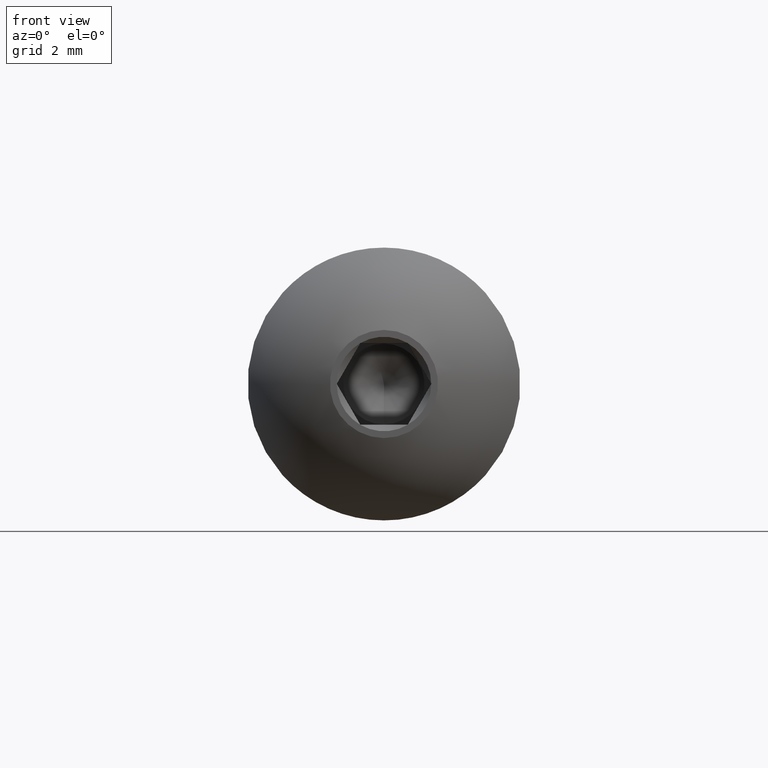
[diagram: clean part render]
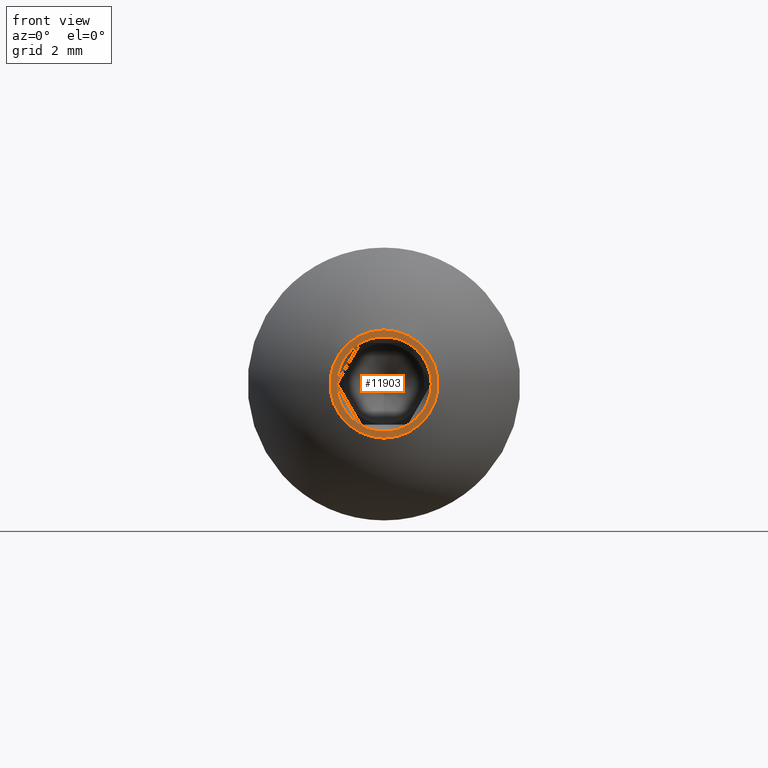
[diagram: same view with one face highlighted and labeled with its STEP entity id]
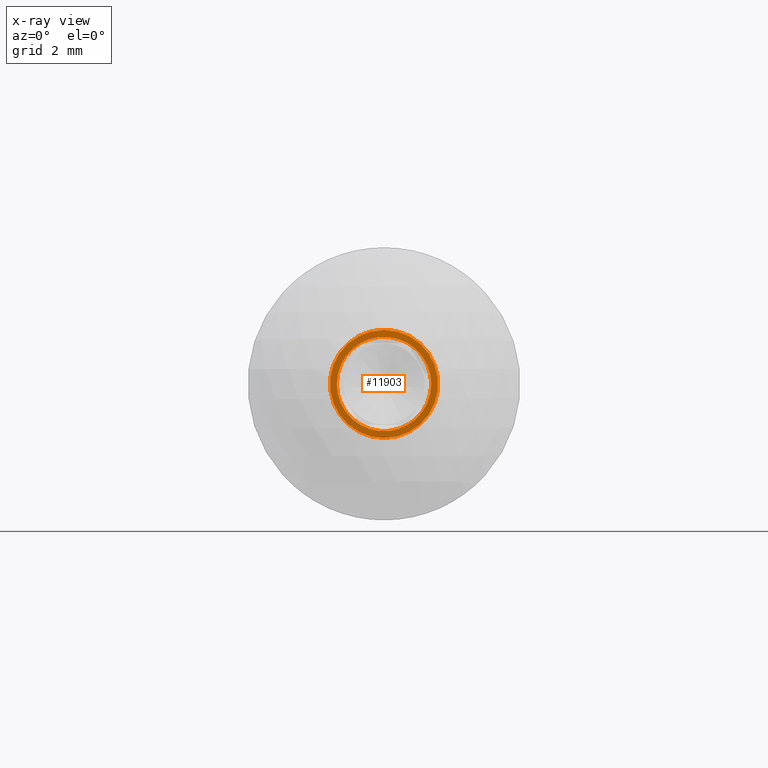
[diagram: x-ray of the same camera — body ghosted, the highlighted face saturated]
A machine part, front view. The second image highlights one B-rep face of the part: STEP entity #11903.
The next image is the same camera in x-ray: the body ghosted, the highlighted face saturated — about 0% of this face is hidden behind the body in this view.
In plain terms, the highlighted planar face has unit normal (0, 1, 0).
Its self-contained STEP definition (entity closure, byte-faithful):
#439 = CIRCLE ( 'NONE', #8825, 1.732050807568877200 ) ;
#653 = ORIENTED_EDGE ( 'NONE', *, *, #11321, .T. ) ;
#969 = VERTEX_POINT ( 'NONE', #1791 ) ;
#1025 = ORIENTED_EDGE ( 'NONE', *, *, #6779, .F. ) ;
#1045 = PLANE ( 'NONE',  #10251 ) ;
#1106 = DIRECTION ( 'NONE',  ( -0.0000000000000000000, -1.000000000000000000, -0.0000000000000000000 ) ) ;
#1461 = CARTESIAN_POINT ( 'NONE',  ( 0.8660254037844238300, 0.0000000000000000000, 1.500000000000000000 ) ) ;
#1791 = CARTESIAN_POINT ( 'NONE',  ( -0.8660254037844510300, 0.0000000000000000000, -1.500000000000000900 ) ) ;
#1912 = AXIS2_PLACEMENT_3D ( 'NONE', #5806, #4670, #2574 ) ;
#1916 = EDGE_CURVE ( 'NONE', #5576, #10264, #13132, .T. ) ;
#2182 = DIRECTION ( 'NONE',  ( 0.0000000000000000000, 0.0000000000000000000, -1.000000000000000000 ) ) ;
#2574 = DIRECTION ( 'NONE',  ( 0.0000000000000000000, 0.0000000000000000000, -1.000000000000000000 ) ) ;
#2749 = VERTEX_POINT ( 'NONE', #7374 ) ;
#2765 = CIRCLE ( 'NONE', #5632, 1.732050807568877200 ) ;
#3340 = AXIS2_PLACEMENT_3D ( 'NONE', #13611, #6700, #2182 ) ;
#4016 = EDGE_CURVE ( 'NONE', #2749, #5652, #6768, .T. ) ;
#4464 = DIRECTION ( 'NONE',  ( 0.0000000000000000000, -0.0000000000000000000, 1.000000000000000000 ) ) ;
#4606 = DIRECTION ( 'NONE',  ( 0.0000000000000000000, 0.0000000000000000000, -1.000000000000000000 ) ) ;
#4670 = DIRECTION ( 'NONE',  ( -0.0000000000000000000, -1.000000000000000000, -0.0000000000000000000 ) ) ;
#4770 = CARTESIAN_POINT ( 'NONE',  ( 0.0000000000000000000, 0.0000000000000000000, 0.0000000000000000000 ) ) ;
#4791 = AXIS2_PLACEMENT_3D ( 'NONE', #5551, #13608, #4606 ) ;
#4921 = CIRCLE ( 'NONE', #7169, 1.982050807568877600 ) ;
#5551 = CARTESIAN_POINT ( 'NONE',  ( 0.0000000000000000000, 0.0000000000000000000, 0.0000000000000000000 ) ) ;
#5576 = VERTEX_POINT ( 'NONE', #11375 ) ;
#5632 = AXIS2_PLACEMENT_3D ( 'NONE', #4770, #9228, #6956 ) ;
#5652 = VERTEX_POINT ( 'NONE', #13956 ) ;
#5806 = CARTESIAN_POINT ( 'NONE',  ( 0.0000000000000000000, 0.0000000000000000000, 0.0000000000000000000 ) ) ;
#5832 = ORIENTED_EDGE ( 'NONE', *, *, #13388, .F. ) ;
#5928 = CARTESIAN_POINT ( 'NONE',  ( 0.0000000000000000000, 0.0000000000000000000, 0.0000000000000000000 ) ) ;
#6536 = VERTEX_POINT ( 'NONE', #1461 ) ;
#6700 = DIRECTION ( 'NONE',  ( -0.0000000000000000000, -1.000000000000000000, -0.0000000000000000000 ) ) ;
#6768 = CIRCLE ( 'NONE', #1912, 1.732050807568877200 ) ;
#6779 = EDGE_CURVE ( 'NONE', #6536, #2749, #12321, .T. ) ;
#6956 = DIRECTION ( 'NONE',  ( 0.0000000000000000000, 0.0000000000000000000, -1.000000000000000000 ) ) ;
#7169 = AXIS2_PLACEMENT_3D ( 'NONE', #7357, #13306, #8720 ) ;
#7357 = CARTESIAN_POINT ( 'NONE',  ( 0.0000000000000000000, 0.0000000000000000000, 0.0000000000000000000 ) ) ;
#7374 = CARTESIAN_POINT ( 'NONE',  ( -0.8660254037844510300, 0.0000000000000000000, 1.500000000000000000 ) ) ;
#7525 = VERTEX_POINT ( 'NONE', #11165 ) ;
#8131 = CIRCLE ( 'NONE', #4791, 1.732050807568877200 ) ;
#8720 = DIRECTION ( 'NONE',  ( 0.0000000000000000000, 0.0000000000000000000, -1.000000000000000000 ) ) ;
#8825 = AXIS2_PLACEMENT_3D ( 'NONE', #5928, #13233, #13184 ) ;
#8969 = CARTESIAN_POINT ( 'NONE',  ( 1.982050807568877200, 0.0000000000000000000, 0.0000000000000000000 ) ) ;
#9228 = DIRECTION ( 'NONE',  ( -0.0000000000000000000, -1.000000000000000000, -0.0000000000000000000 ) ) ;
#9819 = CARTESIAN_POINT ( 'NONE',  ( 1.732050807568857900, 0.0000000000000000000, -3.245523709726175600E-016 ) ) ;
#10251 = AXIS2_PLACEMENT_3D ( 'NONE', #8969, #12453, #4464 ) ;
#10264 = VERTEX_POINT ( 'NONE', #9819 ) ;
#10430 = EDGE_LOOP ( 'NONE', ( #653 ) ) ;
#11165 = CARTESIAN_POINT ( 'NONE',  ( 0.0000000000000000000, 0.0000000000000000000, -1.982050807568877600 ) ) ;
#11321 = EDGE_CURVE ( 'NONE', #7525, #7525, #4921, .T. ) ;
#11353 = ORIENTED_EDGE ( 'NONE', *, *, #11905, .F. ) ;
#11375 = CARTESIAN_POINT ( 'NONE',  ( 0.8660254037844173900, 0.0000000000000000000, -1.500000000000012200 ) ) ;
#11399 = DIRECTION ( 'NONE',  ( 0.0000000000000000000, 0.0000000000000000000, -1.000000000000000000 ) ) ;
#11563 = FACE_BOUND ( 'NONE', #13654, .T. ) ;
#11903 = ADVANCED_FACE ( 'NONE', ( #11563, #12295 ), #1045, .F. ) ;
#11905 = EDGE_CURVE ( 'NONE', #10264, #6536, #8131, .T. ) ;
#12295 = FACE_OUTER_BOUND ( 'NONE', #10430, .T. ) ;
#12321 = CIRCLE ( 'NONE', #3340, 1.732050807568877200 ) ;
#12453 = DIRECTION ( 'NONE',  ( 0.0000000000000000000, 1.000000000000000000, 0.0000000000000000000 ) ) ;
#12573 = EDGE_CURVE ( 'NONE', #969, #5576, #2765, .T. ) ;
#12645 = ORIENTED_EDGE ( 'NONE', *, *, #1916, .F. ) ;
#12895 = ORIENTED_EDGE ( 'NONE', *, *, #12573, .F. ) ;
#13129 = AXIS2_PLACEMENT_3D ( 'NONE', #13725, #1106, #11399 ) ;
#13132 = CIRCLE ( 'NONE', #13129, 1.732050807568877200 ) ;
#13164 = ORIENTED_EDGE ( 'NONE', *, *, #4016, .F. ) ;
#13184 = DIRECTION ( 'NONE',  ( 0.0000000000000000000, 0.0000000000000000000, -1.000000000000000000 ) ) ;
#13233 = DIRECTION ( 'NONE',  ( -0.0000000000000000000, -1.000000000000000000, -0.0000000000000000000 ) ) ;
#13306 = DIRECTION ( 'NONE',  ( -0.0000000000000000000, -1.000000000000000000, -0.0000000000000000000 ) ) ;
#13388 = EDGE_CURVE ( 'NONE', #5652, #969, #439, .T. ) ;
#13608 = DIRECTION ( 'NONE',  ( -0.0000000000000000000, -1.000000000000000000, -0.0000000000000000000 ) ) ;
#13611 = CARTESIAN_POINT ( 'NONE',  ( 0.0000000000000000000, 0.0000000000000000000, 0.0000000000000000000 ) ) ;
#13654 = EDGE_LOOP ( 'NONE', ( #12645, #12895, #5832, #13164, #1025, #11353 ) ) ;
#13725 = CARTESIAN_POINT ( 'NONE',  ( 0.0000000000000000000, 0.0000000000000000000, 0.0000000000000000000 ) ) ;
#13956 = CARTESIAN_POINT ( 'NONE',  ( -1.732050807568857000, 0.0000000000000000000, 9.967772451734035100E-017 ) ) ;